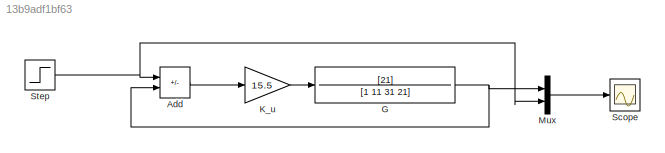
MODEL slx_13b9adf1bf63
KIND model
CONFIG AbsTol = auto
CONFIG EnableMultiTasking = off
CONFIG FixedStep = auto
CONFIG MaxStep = auto
CONFIG MinStep = auto
CONFIG RelTol = 1e-3
CONFIG SampleTimeConstraint = Unconstrained
CONFIG SolverName = VariableStepAuto
CONFIG StartTime = 0.0
CONFIG StopTime = 10.0
BLOCK [Sum] Add
  IconShape = rectangular
  Inputs = +-
BLOCK [TransferFcn] G
  Denominator = [1 11 31 21]
  Numerator = [21]
BLOCK [Gain] K_u
  Gain = 15.5
BLOCK [Mux] Mux
  DisplayOption = bar
  Inputs = 2
BLOCK [Scope] Scope
  Floating = off
  NumInputPorts = 1
  ScopeSpecificationString = Simulink.scopes.TimeScopeBlockCfg('CurrentConfiguration', extmgr.ConfigurationSet(extmgr.Configuration('Core','General UI',true),extmgr.Configuration('Core','Source UI',true),extmgr.Configuration('Sources','WiredSimulink',true),extmgr.Configuration('Visuals','Time Domain',true,'SerializedDisplays',{struct('MinYLimReal','-0.26361','MaxYLimReal','2.12966','YLabelReal','','MinYLimMag','0.00000','MaxY...<+1790ch>
BLOCK [Step] Step
  SampleTime = 0
LINE Add:1 -> K_u:1
NET G:1 -> Add:2, Mux:1
LINE K_u:1 -> G:1
LINE Mux:1 -> Scope:1
NET Step:1 -> Add:1, Mux:2
note: NET lines group one-source signal fan-out (src -> all destinations, sorted); 1:1 wires keep LINE
